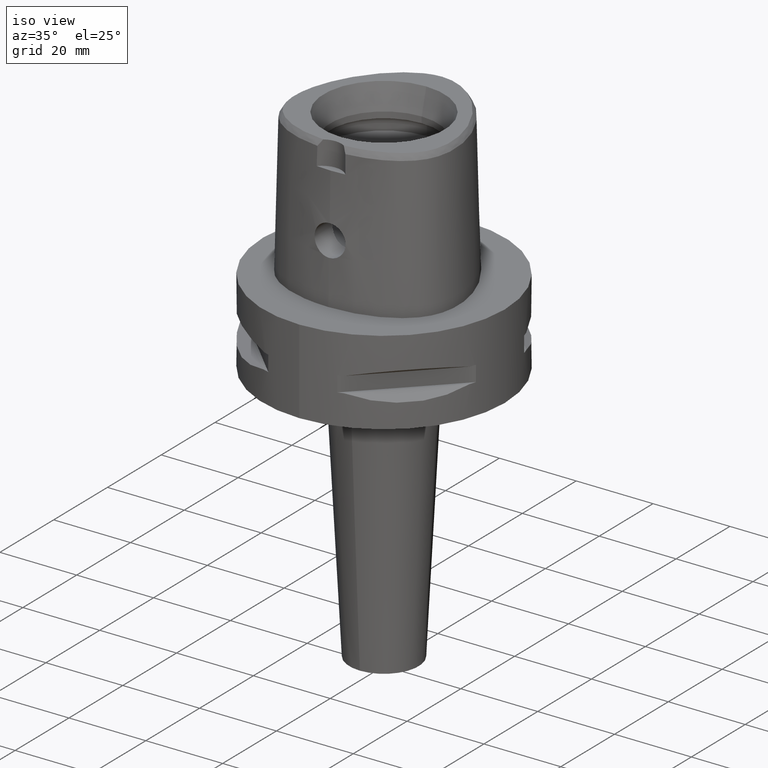
[diagram: clean part render]
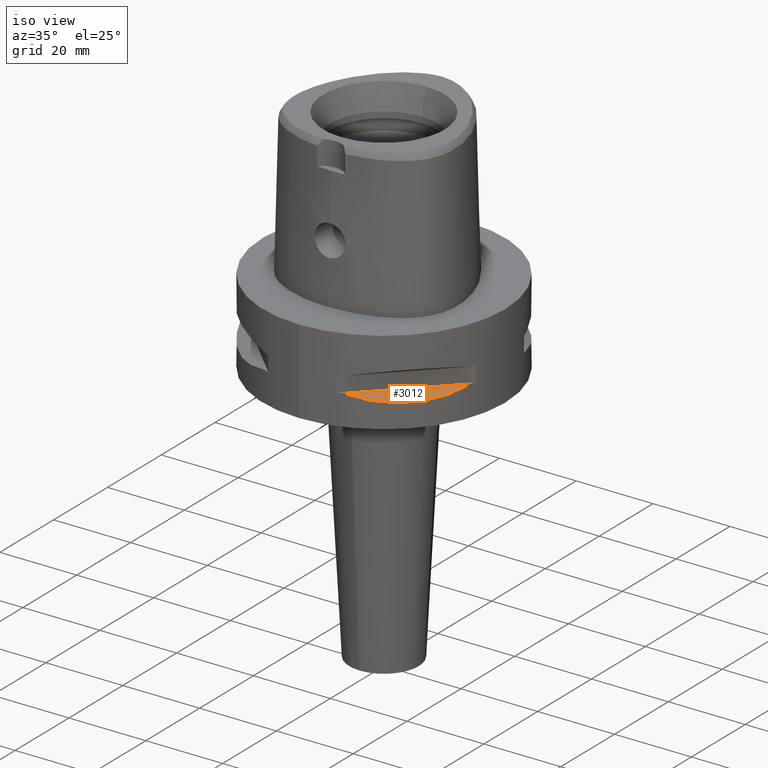
[diagram: same view with one face highlighted and labeled with its STEP entity id]
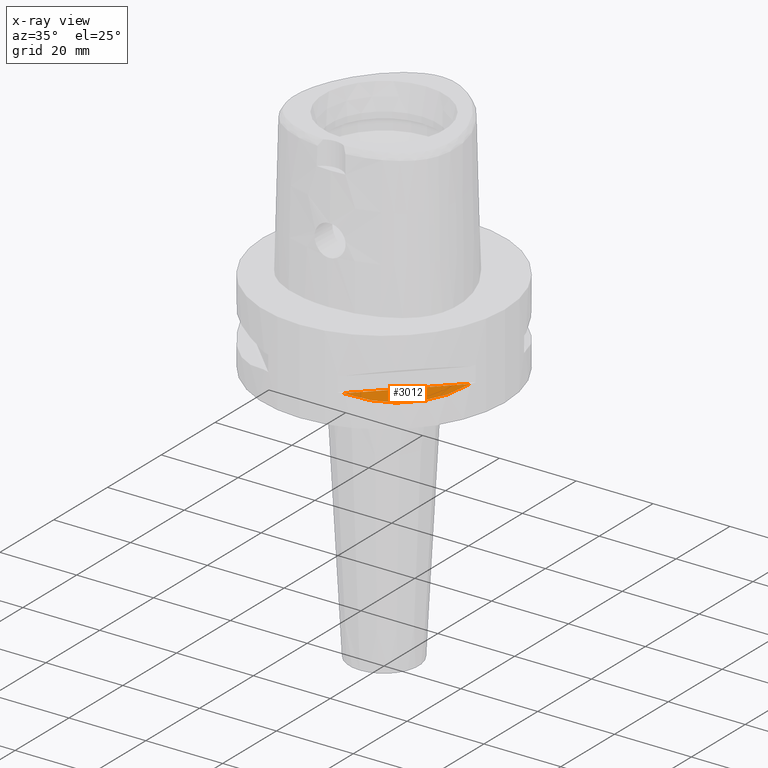
[diagram: x-ray of the same camera — body ghosted, the highlighted face saturated]
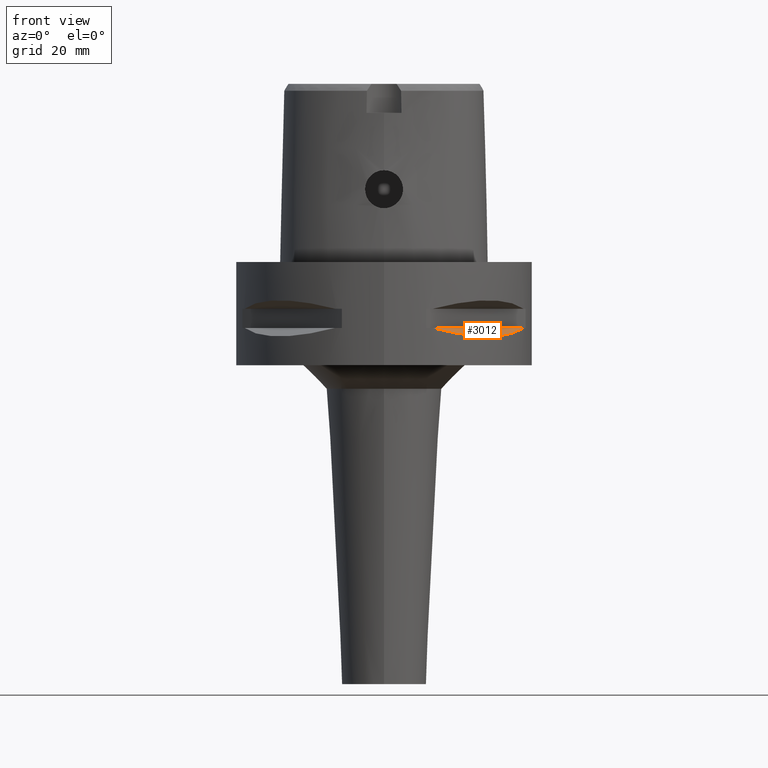
[diagram: same view with one face highlighted and labeled with its STEP entity id]
A machine part, iso view. The second image highlights one B-rep face of the part: STEP entity #3012.
The next image is the same camera in x-ray: the body ghosted, the highlighted face saturated — about 0% of this face is hidden behind the body in this view.
A second angle (front view) of the same face is appended — the face is thin or edge-on in the first view.
In plain terms, the highlighted planar face has unit normal (-0.3536, 0.3536, -0.866).
Its self-contained STEP definition (entity closure, byte-faithful):
#465=CARTESIAN_POINT('',(1.044775724750E1,-2.971690375018E1,-1.405E1));
#466=CARTESIAN_POINT('',(1.282388988809E1,-2.888151197365E1,-1.467900482380E1));
#467=CARTESIAN_POINT('',(1.711282138769E1,-2.674739463903E1,-1.555870402293E1));
#468=CARTESIAN_POINT('',(2.244574140438E1,-2.244574140438E1,-1.597971692371E1));
#469=CARTESIAN_POINT('',(2.674739463903E1,-1.711282138769E1,-1.555870402293E1));
#470=CARTESIAN_POINT('',(2.888151197365E1,-1.282388988809E1,-1.467900482380E1));
#471=CARTESIAN_POINT('',(2.971690375018E1,-1.044775724750E1,-1.405E1));
#1194=DIRECTION('',(7.071067811865E-1,7.071067811865E-1,0.E0));
#1195=VECTOR('',#1194,2.725068831944E1);
#1196=CARTESIAN_POINT('',(1.044775724750E1,-2.971690375018E1,-1.405E1));
#1197=LINE('',#1196,#1195);
#1480=CARTESIAN_POINT('',(1.044775724750E1,-2.971690375018E1,-1.405E1));
#1481=VERTEX_POINT('',#1480);
#1482=VERTEX_POINT('',#471);
#3003=CARTESIAN_POINT('',(3.776000002850E1,-2.404660969175E0,-1.405E1));
#3004=DIRECTION('',(-3.535533905933E-1,3.535533905933E-1,-8.660254037844E-1));
#3005=DIRECTION('',(6.123724356958E-1,-6.123724356958E-1,-5.E-1));
#3006=AXIS2_PLACEMENT_3D('',#3003,#3004,#3005);
#3007=PLANE('',#3006);
#3008=ORIENTED_EDGE('',*,*,#2334,.F.);
#3009=ORIENTED_EDGE('',*,*,#2996,.T.);
#3010=EDGE_LOOP('',(#3008,#3009));
#3011=FACE_OUTER_BOUND('',#3010,.F.);
#472=B_SPLINE_CURVE_WITH_KNOTS('',3,(#465,#466,#467,#468,#469,#470,#471),
.UNSPECIFIED.,.F.,.F.,(4,1,1,1,4),(0.E0,2.5E-1,5.E-1,7.5E-1,1.E0),
.UNSPECIFIED.);
#2334=EDGE_CURVE('',#1481,#1482,#472,.T.);
#2996=EDGE_CURVE('',#1481,#1482,#1197,.T.);
#3012=ADVANCED_FACE('',(#3011),#3007,.F.);